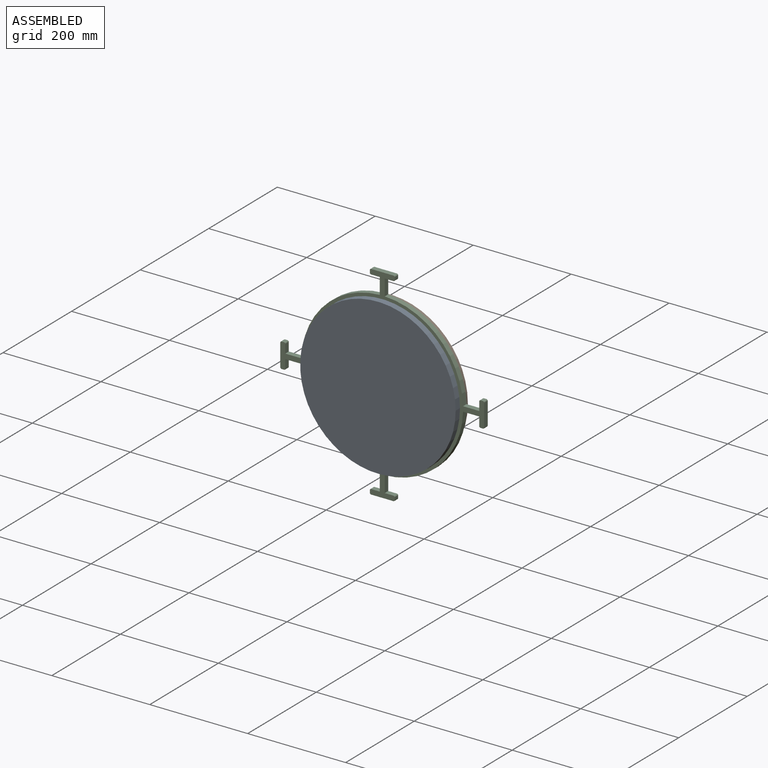
[diagram: assembled view]
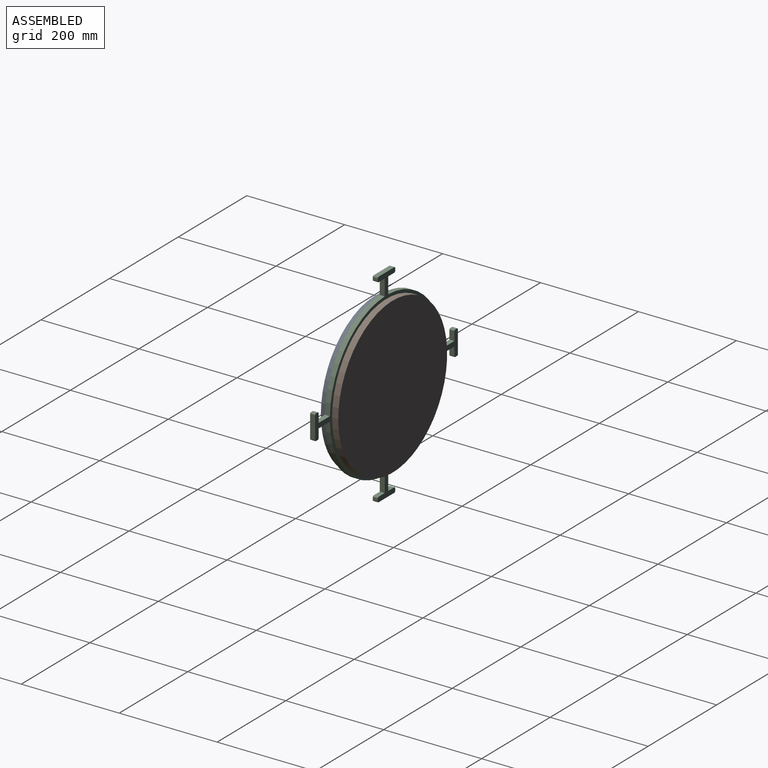
[diagram: assembled view, second angle]
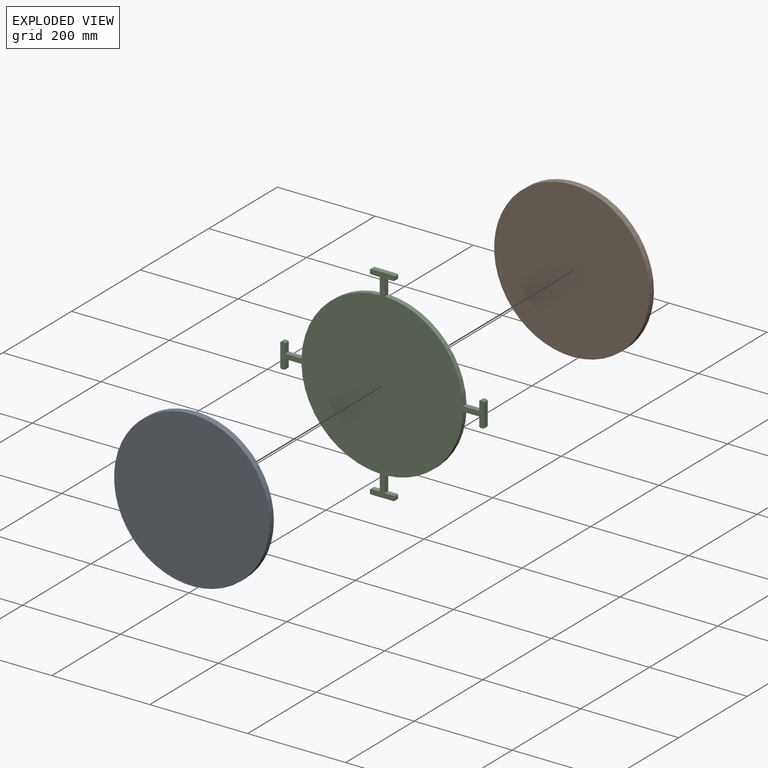
[diagram: exploded view]
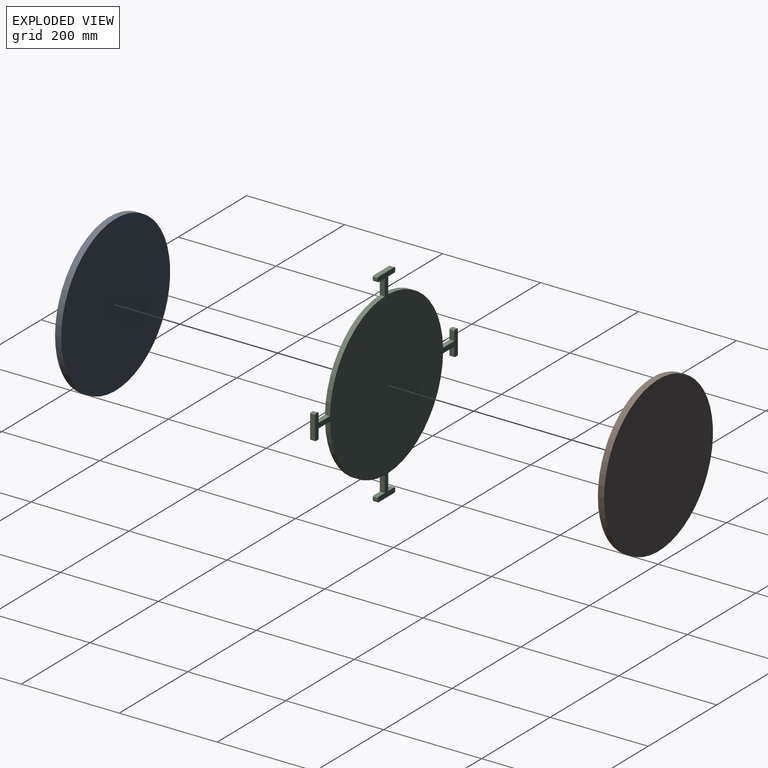
[diagram: exploded view, second angle]
ASSEMBLY  parts=3 mates=4
PART A: 3 faces, bbox 317.5x317.5x12.7 mm
  f0: cylinder r=158.75mm len=317.5mm, axis (0,0,-1), area 12667.7mm2, adj f1,f2
  f1: plane 317.5x317.5mm, normal (0,0,1), area 79173mm2, adj f0
  f2: plane 317.5x317.5mm, normal (0,0,-1), area 79173mm2, adj f0
PART B: same geometry as A
PART C: 50 faces, bbox 416.4x416.4x10.2 mm
  f0: cylinder r=165.1mm len=159.94mm, axis (0,0,-1), area 2531.6mm2, adj f1,f47,f48,f49
  f1: plane 33.02x10.16mm, normal (1,0,0), area 335.5mm2, adj f0,f2,f48,f49
  f2: plane 17.78x10.16mm, normal (0,-1,0), area 180.6mm2, adj f1,f3,f48,f49
  f3: cylinder r=2.54mm len=10.16mm, axis (0,0,-1), area 40.5mm2, adj f2,f4,f48,f49
  f4: plane 10.16x5.08mm, normal (1,0,0), area 51.6mm2, adj f3,f5,f48,f49
  f5: cylinder r=2.54mm len=10.16mm, axis (0,0,-1), area 40.5mm2, adj f4,f6,f48,f49
  f6: plane 45.72x10.16mm, normal (0,1,0), area 464.5mm2, adj f5,f7,f48,f49
  f7: cylinder r=2.54mm len=10.16mm, axis (0,0,-1), area 40.5mm2, adj f6,f8,f48,f49
  f8: plane 10.16x5.08mm, normal (-1,0,0), area 51.6mm2, adj f7,f9,f48,f49
  f9: cylinder r=2.54mm len=10.16mm, axis (0,0,-1), area 40.5mm2, adj f8,f10,f48,f49
  f10: plane 17.78x10.16mm, normal (0,-1,0), area 180.6mm2, adj f9,f11,f48,f49
  f11: plane 33.02x10.16mm, normal (-1,0,0), area 335.5mm2, adj f10,f12,f48,f49
  f12: cylinder r=165.1mm len=159.94mm, axis (0,0,-1), area 2531.6mm2, adj f11,f13,f48,f49
  f13: plane 33.02x10.16mm, normal (0,1,0), area 335.5mm2, adj f12,f14,f48,f49
  f14: plane 17.78x10.16mm, normal (1,0,0), area 180.6mm2, adj f13,f15,f48,f49
  f15: cylinder r=2.54mm len=10.16mm, axis (0,0,-1), area 40.5mm2, adj f14,f16,f48,f49
  f16: plane 10.16x5.08mm, normal (0,1,0), area 51.6mm2, adj f15,f17,f48,f49
  f17: cylinder r=2.54mm len=10.16mm, axis (0,0,-1), area 40.5mm2, adj f16,f18,f48,f49
  f18: plane 45.72x10.16mm, normal (-1,0,0), area 464.5mm2, adj f17,f19,f48,f49
  f19: cylinder r=2.54mm len=10.16mm, axis (0,0,-1), area 40.5mm2, adj f18,f20,f48,f49
  f20: plane 10.16x5.08mm, normal (0,-1,0), area 51.6mm2, adj f19,f21,f48,f49
  f21: cylinder r=2.54mm len=10.16mm, axis (0,0,-1), area 40.5mm2, adj f20,f22,f48,f49
  f22: plane 17.78x10.16mm, normal (1,0,0), area 180.6mm2, adj f21,f23,f48,f49
  f23: plane 33.02x10.16mm, normal (0,-1,0), area 335.5mm2, adj f22,f24,f48,f49
  f24: cylinder r=165.1mm len=159.94mm, axis (0,0,-1), area 2531.6mm2, adj f23,f25,f48,f49
  f25: plane 33.02x10.16mm, normal (-1,0,0), area 335.5mm2, adj f24,f26,f48,f49
  f26: plane 17.78x10.16mm, normal (0,1,0), area 180.6mm2, adj f25,f27,f48,f49
  f27: cylinder r=2.54mm len=10.16mm, axis (0,0,-1), area 40.5mm2, adj f26,f28,f48,f49
  f28: plane 10.16x5.08mm, normal (-1,0,0), area 51.6mm2, adj f27,f29,f48,f49
  f29: cylinder r=2.54mm len=10.16mm, axis (0,0,-1), area 40.5mm2, adj f28,f30,f48,f49
  f30: plane 45.72x10.16mm, normal (0,-1,0), area 464.5mm2, adj f29,f31,f48,f49
  f31: cylinder r=2.54mm len=10.16mm, axis (0,0,-1), area 40.5mm2, adj f30,f32,f48,f49
  f32: plane 10.16x5.08mm, normal (1,0,0), area 51.6mm2, adj f31,f33,f48,f49
  f33: cylinder r=2.54mm len=10.16mm, axis (0,0,-1), area 40.5mm2, adj f32,f34,f48,f49
  f34: plane 17.78x10.16mm, normal (0,1,0), area 180.6mm2, adj f33,f35,f48,f49
  f35: plane 33.02x10.16mm, normal (1,0,0), area 335.5mm2, adj f34,f36,f48,f49
  f36: cylinder r=165.1mm len=159.94mm, axis (0,0,-1), area 2531.6mm2, adj f35,f37,f48,f49
  f37: plane 33.02x10.16mm, normal (0,-1,0), area 335.5mm2, adj f36,f38,f48,f49
  f38: plane 17.78x10.16mm, normal (-1,0,0), area 180.6mm2, adj f37,f39,f48,f49
  f39: cylinder r=2.54mm len=10.16mm, axis (0,0,-1), area 40.5mm2, adj f38,f40,f48,f49
  f40: plane 10.16x5.08mm, normal (0,-1,0), area 51.6mm2, adj f39,f41,f48,f49
  f41: cylinder r=2.54mm len=10.16mm, axis (0,0,-1), area 40.5mm2, adj f40,f42,f48,f49
  f42: plane 45.72x10.16mm, normal (1,0,0), area 464.5mm2, adj f41,f43,f48,f49
  f43: cylinder r=2.54mm len=10.16mm, axis (0,0,-1), area 40.5mm2, adj f42,f44,f48,f49
  f44: plane 10.16x5.08mm, normal (0,1,0), area 51.6mm2, adj f43,f45,f48,f49
  f45: cylinder r=2.54mm len=10.16mm, axis (0,0,-1), area 40.5mm2, adj f44,f46,f48,f49
  f46: plane 17.78x10.16mm, normal (-1,0,0), area 180.6mm2, adj f45,f47,f48,f49
  f47: plane 33.02x10.16mm, normal (0,1,0), area 335.5mm2, adj f0,f46,f48,f49
  f48: plane 416.4x416.4mm, normal (0,0,1), area 89015.7mm2, adj f0,f1,f2,f3,f4,f5,f6,f7
  f49: plane 416.4x416.4mm, normal (0,0,-1), area 89015.7mm2, adj f0,f1,f2,f3,f4,f5,f6,f7
PLACE A rot(axis=(1,0,0),90deg) t=(60.25,77.69,92.92)mm
PLACE B rot(axis=(-1,0,0),90deg) t=(60.25,87.85,92.92)mm
PLACE C rot(axis=(1,0,0),90deg) t=(60.25,87.85,92.92)mm fixed
MATE revolute A.f0 <-> C.f0  axis (0,1,0) through (60.25,77.69,92.92)mm
MATE planar A.f0 <-> C.f0  axis (0,1,0) through (60.25,77.69,92.92)mm
MATE planar C.f0 <-> B.f0  axis (0,1,0) through (60.25,87.85,92.92)mm
MATE planar A.f0 <-> C.f0  axis (0,1,0) through (60.25,77.69,92.92)mm
